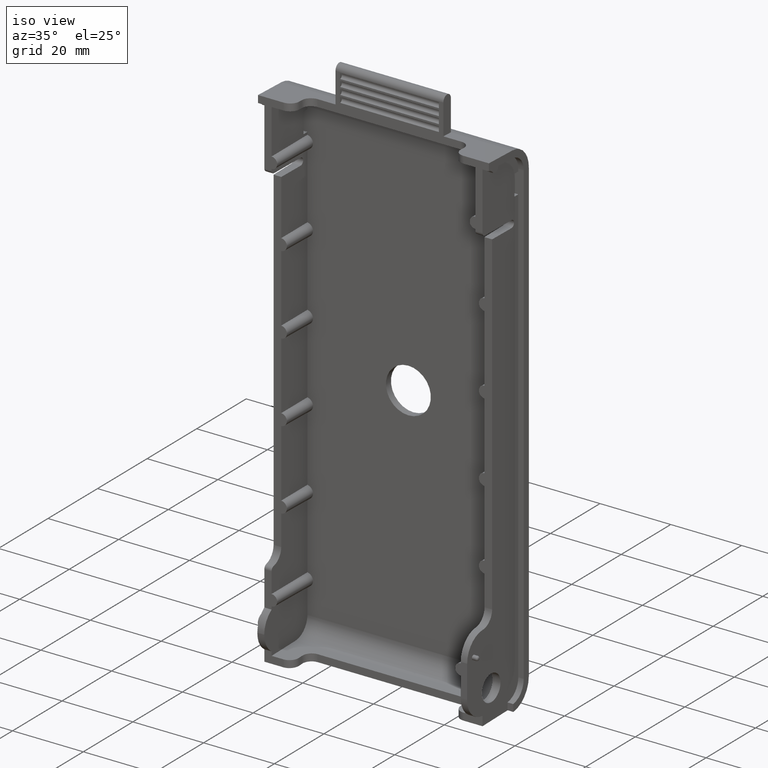
[diagram: clean part render]
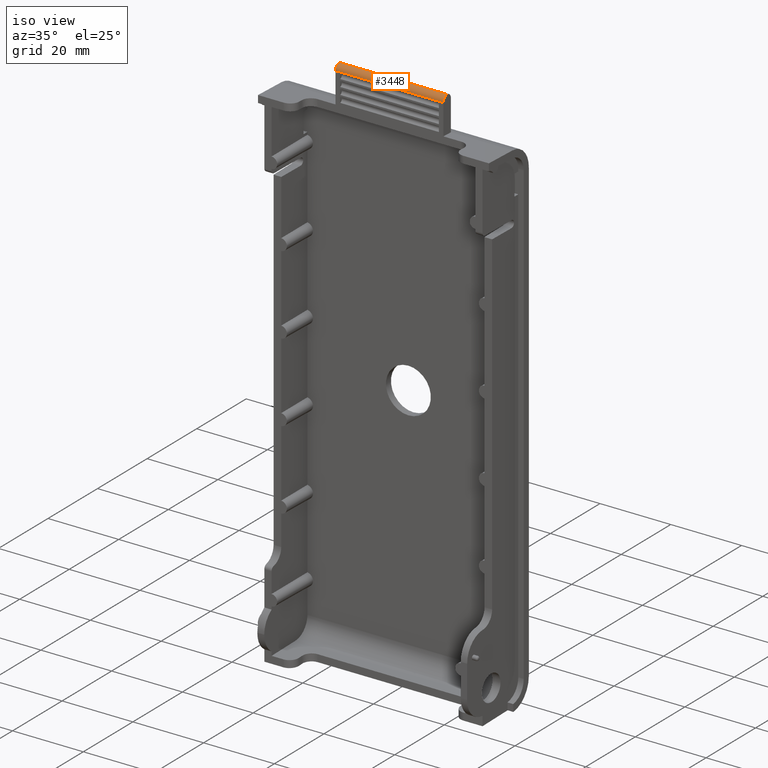
[diagram: same view with one face highlighted and labeled with its STEP entity id]
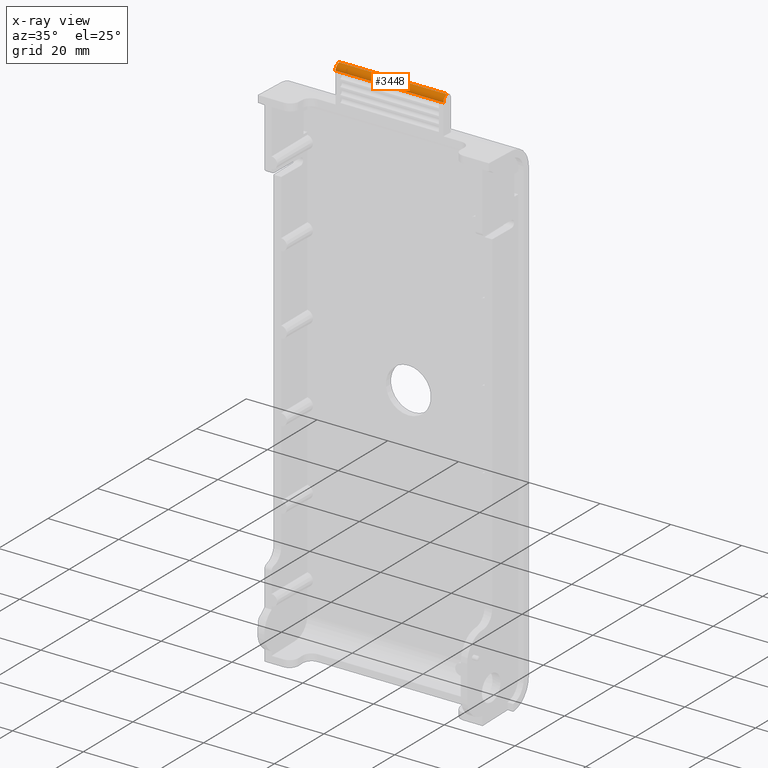
[diagram: x-ray of the same camera — body ghosted, the highlighted face saturated]
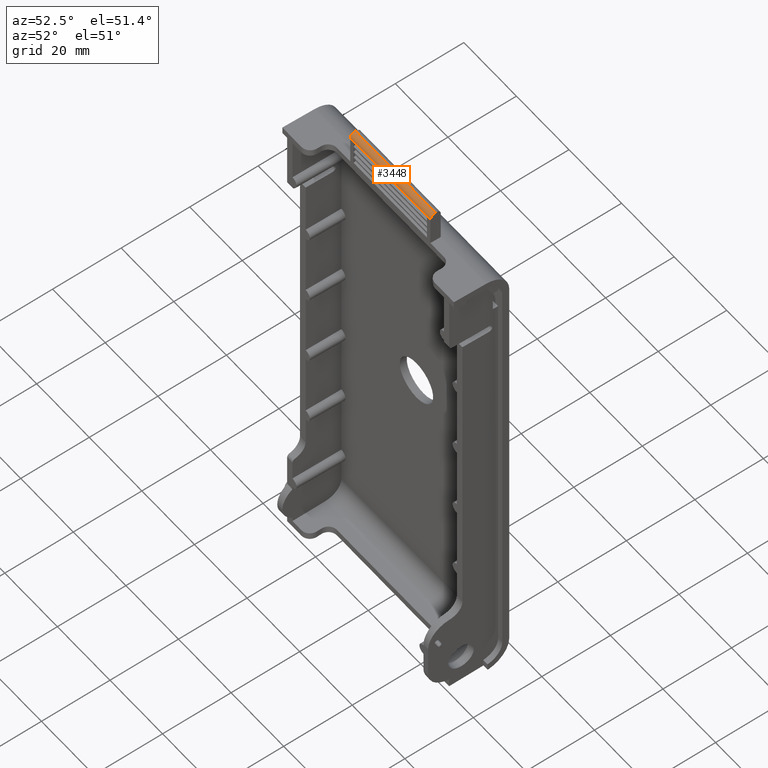
[diagram: same view with one face highlighted and labeled with its STEP entity id]
A machine part, iso view. The second image highlights one B-rep face of the part: STEP entity #3448.
The next image is the same camera in x-ray: the body ghosted, the highlighted face saturated — about 0% of this face is hidden behind the body in this view.
A second angle (auxiliary view) of the same face is appended — the face is thin or edge-on in the first view.
In plain terms, the highlighted cylindrical surface (edge-blend (fillet) strip) has radius 1.524 mm, axis along (-1, -0, -0).
Its self-contained STEP definition (entity closure, byte-faithful):
#16 = ORIENTED_EDGE ( 'NONE', *, *, #3049, .T. ) ;
#279 = VERTEX_POINT ( 'NONE', #5203 ) ;
#300 = VECTOR ( 'NONE', #4900, 39.37007874015748100 ) ;
#347 = CIRCLE ( 'NONE', #1224, 0.05999999999999990800 ) ;
#389 = CIRCLE ( 'NONE', #635, 0.05999999999999990800 ) ;
#447 = FACE_OUTER_BOUND ( 'NONE', #3493, .T. ) ;
#550 = VERTEX_POINT ( 'NONE', #4192 ) ;
#635 = AXIS2_PLACEMENT_3D ( 'NONE', #3669, #3666, #3662 ) ;
#899 = EDGE_CURVE ( 'NONE', #1694, #550, #389, .T. ) ;
#921 = CARTESIAN_POINT ( 'NONE',  ( -0.5999999999999999800, 0.2544228641096742400, 3.171115357808997000 ) ) ;
#1099 = DIRECTION ( 'NONE',  ( 0.0000000000000000000, 0.0000000000000000000, 1.000000000000000000 ) ) ;
#1119 = DIRECTION ( 'NONE',  ( -1.000000000000000000, -0.0000000000000000000, -0.0000000000000000000 ) ) ;
#1153 = CARTESIAN_POINT ( 'NONE',  ( 0.5999999999999999800, 0.3144228641096741800, 3.171115357808996600 ) ) ;
#1170 = ORIENTED_EDGE ( 'NONE', *, *, #1470, .T. ) ;
#1224 = AXIS2_PLACEMENT_3D ( 'NONE', #3821, #3826, #3844 ) ;
#1448 = LINE ( 'NONE', #4886, #3492 ) ;
#1470 = EDGE_CURVE ( 'NONE', #1694, #279, #2100, .T. ) ;
#1694 = VERTEX_POINT ( 'NONE', #2513 ) ;
#2040 = VERTEX_POINT ( 'NONE', #921 ) ;
#2100 = LINE ( 'NONE', #4850, #300 ) ;
#2212 = ORIENTED_EDGE ( 'NONE', *, *, #899, .F. ) ;
#2513 = CARTESIAN_POINT ( 'NONE',  ( 0.5999999999999999800, 0.3144228641096741800, 3.231115357808996200 ) ) ;
#2521 = ORIENTED_EDGE ( 'NONE', *, *, #2972, .F. ) ;
#2972 = EDGE_CURVE ( 'NONE', #550, #2040, #1448, .T. ) ;
#3049 = EDGE_CURVE ( 'NONE', #279, #2040, #347, .T. ) ;
#3448 = ADVANCED_FACE ( 'NONE', ( #447 ), #4941, .T. ) ;
#3492 = VECTOR ( 'NONE', #5208, 39.37007874015748100 ) ;
#3493 = EDGE_LOOP ( 'NONE', ( #2212, #1170, #16, #2521 ) ) ;
#3662 = DIRECTION ( 'NONE',  ( 0.0000000000000000000, 0.0000000000000000000, -1.000000000000000000 ) ) ;
#3666 = DIRECTION ( 'NONE',  ( 1.000000000000000000, 0.0000000000000000000, 0.0000000000000000000 ) ) ;
#3669 = CARTESIAN_POINT ( 'NONE',  ( 0.5999999999999999800, 0.3144228641096741800, 3.171115357808996600 ) ) ;
#3821 = CARTESIAN_POINT ( 'NONE',  ( -0.5999999999999999800, 0.3144228641096741800, 3.171115357808996600 ) ) ;
#3826 = DIRECTION ( 'NONE',  ( 1.000000000000000000, 0.0000000000000000000, 0.0000000000000000000 ) ) ;
#3844 = DIRECTION ( 'NONE',  ( 0.0000000000000000000, 0.0000000000000000000, -1.000000000000000000 ) ) ;
#4047 = AXIS2_PLACEMENT_3D ( 'NONE', #1153, #1119, #1099 ) ;
#4192 = CARTESIAN_POINT ( 'NONE',  ( 0.5999999999999999800, 0.2544228641096742400, 3.171115357808997000 ) ) ;
#4850 = CARTESIAN_POINT ( 'NONE',  ( 0.5999999999999999800, 0.3144228641096741800, 3.231115357808996200 ) ) ;
#4886 = CARTESIAN_POINT ( 'NONE',  ( 0.5999999999999999800, 0.2544228641096742400, 3.171115357808997000 ) ) ;
#4900 = DIRECTION ( 'NONE',  ( -1.000000000000000000, -0.0000000000000000000, -0.0000000000000000000 ) ) ;
#4941 = CYLINDRICAL_SURFACE ( 'NONE', #4047, 0.05999999999999990800 ) ;
#5203 = CARTESIAN_POINT ( 'NONE',  ( -0.5999999999999999800, 0.3144228641096741800, 3.231115357808996200 ) ) ;
#5208 = DIRECTION ( 'NONE',  ( -1.000000000000000000, -0.0000000000000000000, -0.0000000000000000000 ) ) ;